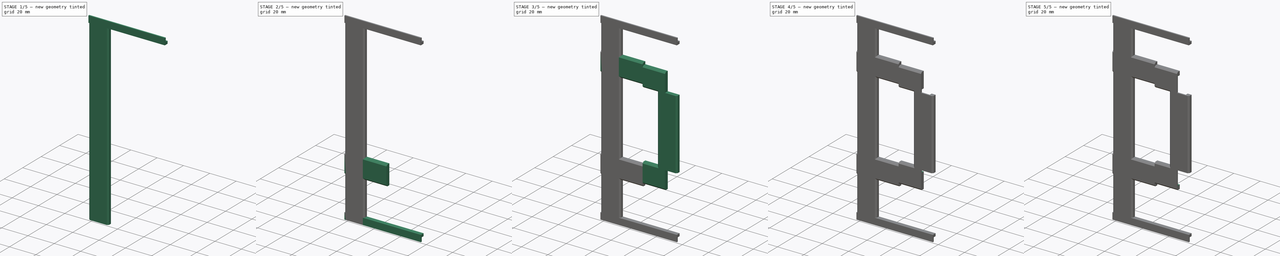
[diagram: build sequence overview — one tinted view per stage of 5, left to right]
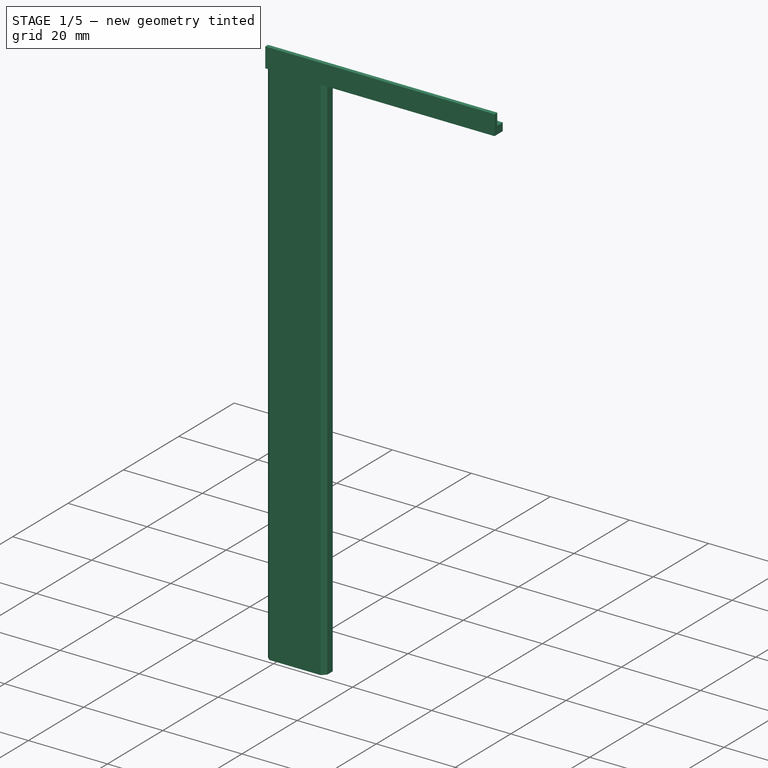
[diagram: stage 1 of 5 — iso view after this stage's code; geometry added in this stage tinted green]
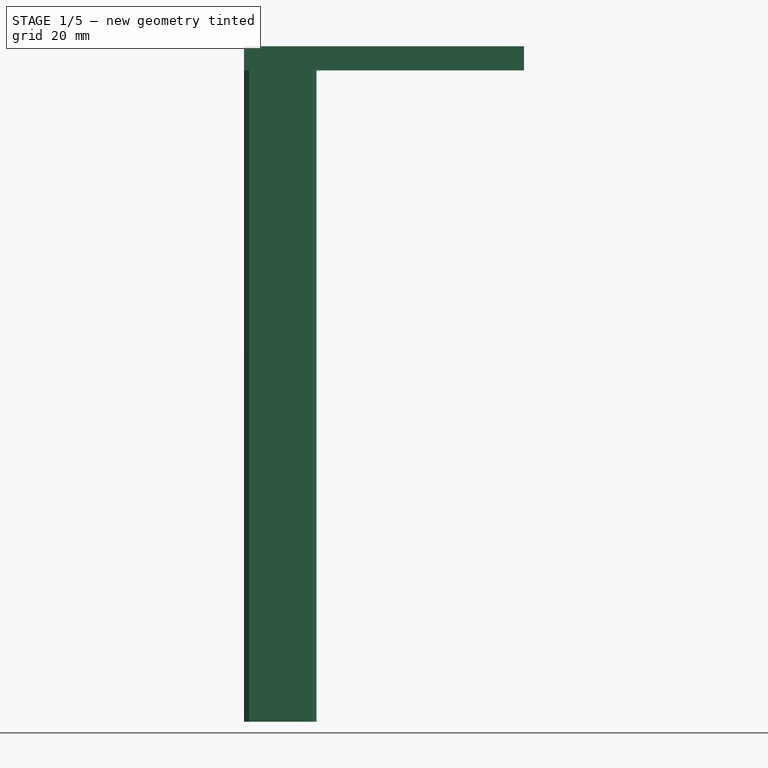
[diagram: stage 1 of 5 — front view after this stage's code; geometry added in this stage tinted green]
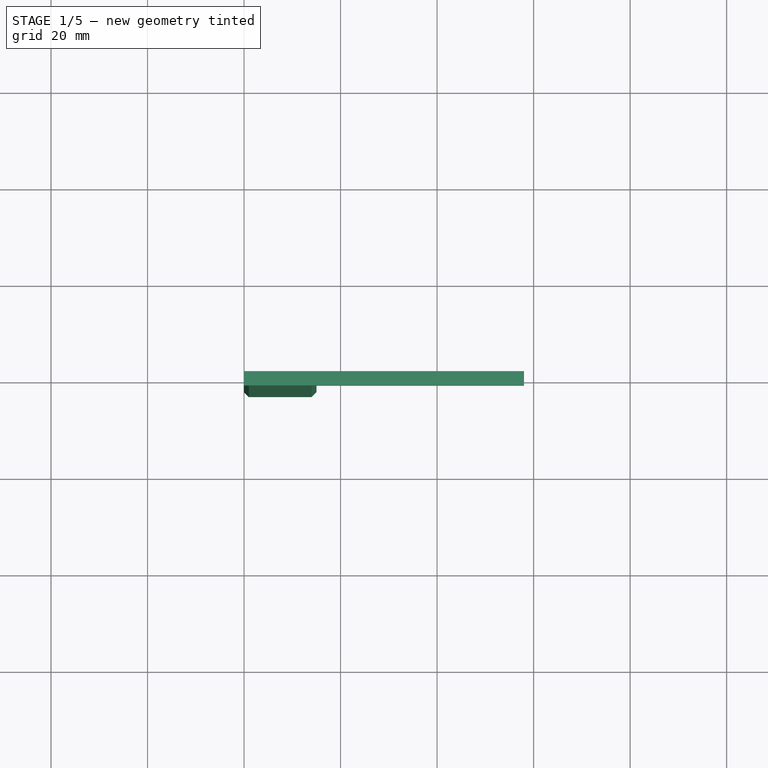
[diagram: stage 1 of 5 — top view after this stage's code; geometry added in this stage tinted green]
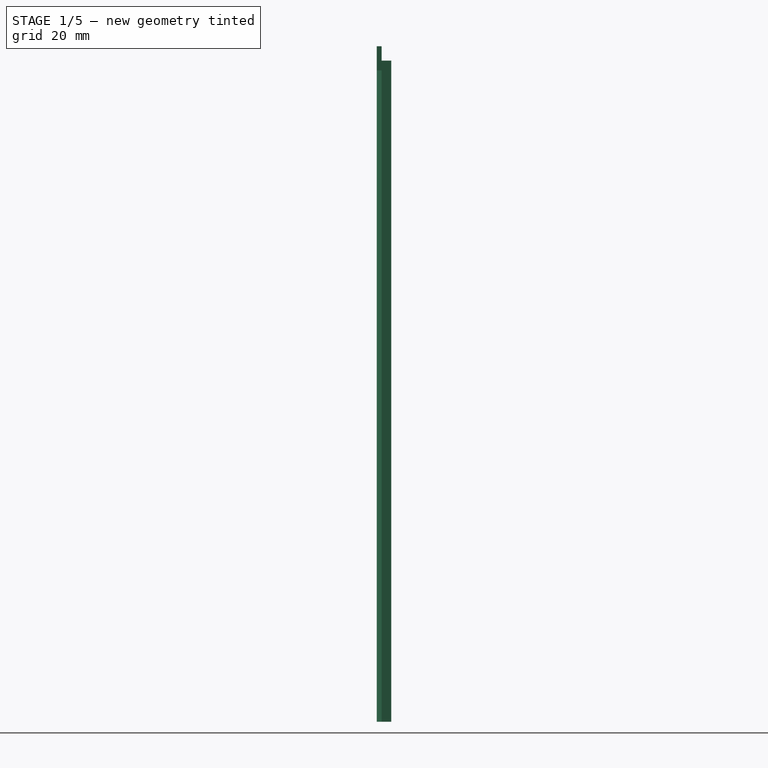
[diagram: stage 1 of 5 — right view after this stage's code; geometry added in this stage tinted green]
FCSTD DOCUMENT  (FreeCAD 0.20R29603 (Git))
Label: neopixelbracket_D
License: All rights reserved
LicenseURL: http://en.wikipedia.org/wiki/All_rights_reserved
objects: Sketcher::SketchObject×16, PartDesign::Pad×8, PartDesign::Pocket×8, PartDesign::Body×1
note: 49 computed .brp shape members not serialized (recipe doc carries the construction recipe); baked Part::Feature solids carry a one-line shape summary decoded from their .brp

FEATURE [Sketcher::SketchObject] Sketch
  FullyConstrained = true
  MapMode = 5
  Support = -> [XY_Plane]
  sketch-geometry (6):
    g0: LineSegment StartX=1.8e-15 StartY=0 StartZ=0 EndX=15 EndY=0 EndZ=0
    g1: LineSegment StartX=15 StartY=0 StartZ=0 EndX=15 EndY=-2 EndZ=0
    g2: LineSegment StartX=15 StartY=-2 StartZ=0 EndX=14 EndY=-3 EndZ=0
    g3: LineSegment StartX=14 StartY=-3 StartZ=0 EndX=1 EndY=-3 EndZ=0
    g4: LineSegment StartX=1 StartY=-3 StartZ=0 EndX=1.8e-15 EndY=-2 EndZ=0
    g5: LineSegment StartX=1.8e-15 StartY=-2 StartZ=0 EndX=1.8e-15 EndY=0 EndZ=0
  constraints (17):
    c: Horizontal(g0)
    c: Coincident(g0,g1)
    c: Vertical(g1)
    c: Coincident(g1,g2)
    c: Coincident(g2,g3)
    c: Horizontal(g3)
    c: Coincident(g3,g4)
    c: Coincident(g4,g5)
    c: Coincident(g5,g0)
    c: Vertical(g5)
    c: DistanceX(g4,g4) = 1
    c: DistanceY(g4,g4) = 1
    c: DistanceY(g5,g5) = 2
    c: DistanceX(g0,g0) = 15
    c: DistanceY(g1,g1) = 2
    c: DistanceX(g2,g2) = 1
    c: Coincident(g0,g-1)
FEATURE [PartDesign::Pad] Pad
  Direction = (0,0,1)
  Length = 140
  Length2 = 10
  Profile = -> Sketch
  ReferenceAxis = -> Sketch [N_Axis]
  Type = 0
FEATURE [Sketcher::SketchObject] Sketch001
  AttachmentOffset = pos=(0,0,-15) rot=(0,0,1;0rad)
  ExternalGeometry = -> [Pad]
  FullyConstrained = true
  MapMode = 5
  Placement = pos=(0,0,0) rot=(0.57735,0.57735,0.57735;2.0944rad)
  Support = -> [Pad]
  sketch-geometry (4):
    g0: LineSegment StartX=0 StartY=140 StartZ=0 EndX=-3 EndY=140 EndZ=0
    g1: LineSegment StartX=-3 StartY=140 StartZ=0 EndX=-3 EndY=135 EndZ=0
    g2: LineSegment StartX=-3 StartY=135 StartZ=0 EndX=0 EndY=135 EndZ=0
    g3: LineSegment StartX=0 StartY=135 StartZ=0 EndX=0 EndY=140 EndZ=0
  constraints (11):
    c: Coincident(g0,g1)
    c: Coincident(g1,g2)
    c: Coincident(g2,g3)
    c: Coincident(g3,g0)
    c: Horizontal(g0)
    c: Horizontal(g2)
    c: Vertical(g1)
    c: Vertical(g3)
    c: DistanceX(g0,g0) = 3
    c: DistanceY(g3,g3) = 5
    c: Coincident(g0,g-3)
FEATURE [PartDesign::Pad] Pad001
  BaseFeature = -> Pad
  Direction = (1,0,0)
  Length = 58
  Length2 = 10
  Profile = -> Sketch001
  ReferenceAxis = -> Sketch001 [N_Axis]
  Type = 0
FEATURE [Sketcher::SketchObject] Sketch002
  ExternalGeometry = -> [Pad001]
  FullyConstrained = true
  MapMode = 5
  Placement = pos=(58,0,0) rot=(0.57735,0.57735,0.57735;2.0944rad)
  Support = -> [Pad001]
  sketch-geometry (4):
    g0: LineSegment StartX=0 StartY=140 StartZ=0 EndX=-2 EndY=140 EndZ=0
    g1: LineSegment StartX=-2 StartY=140 StartZ=0 EndX=-2 EndY=137 EndZ=0
    g2: LineSegment StartX=-2 StartY=137 StartZ=0 EndX=0 EndY=137 EndZ=0
    g3: LineSegment StartX=0 StartY=137 StartZ=0 EndX=0 EndY=140 EndZ=0
  constraints (11):
    c: Coincident(g0,g1)
    c: Coincident(g1,g2)
    c: Coincident(g2,g3)
    c: Coincident(g3,g0)
    c: Horizontal(g0)
    c: Horizontal(g2)
    c: Vertical(g1)
    c: Vertical(g3)
    c: DistanceX(g0,g0) = 2
    c: DistanceY(g3,g3) = 3
    c: Coincident(g-3,g0)
FEATURE [PartDesign::Pocket] Pocket
  BaseFeature = -> Pad001
  Direction = (-1,0,0)
  Length = 58
  Length2 = 5
  Profile = -> Sketch002
  ReferenceAxis = -> Sketch002 [N_Axis]
  Type = 0
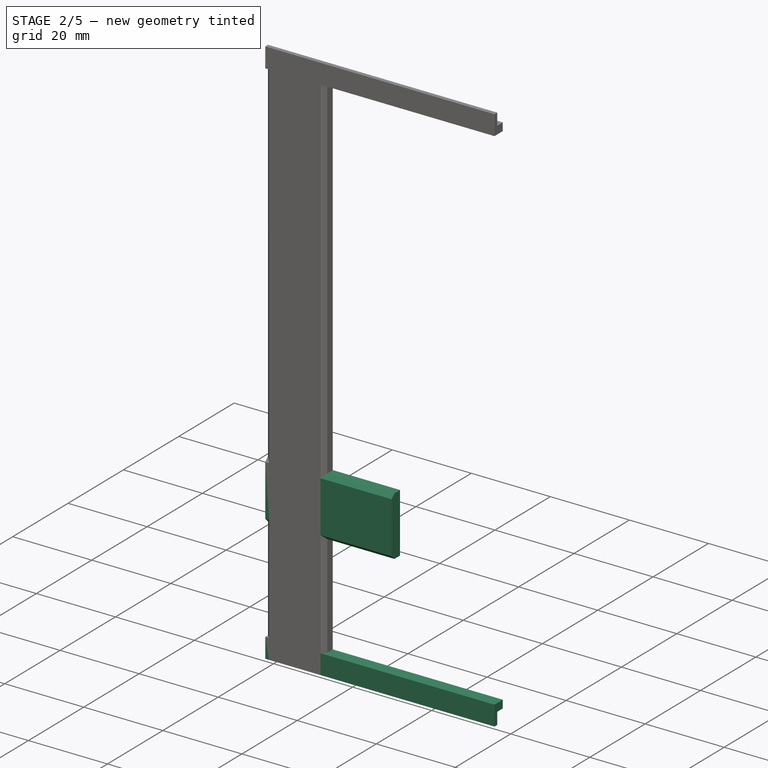
[diagram: stage 2 of 5 — iso view after this stage's code; geometry added in this stage tinted green]
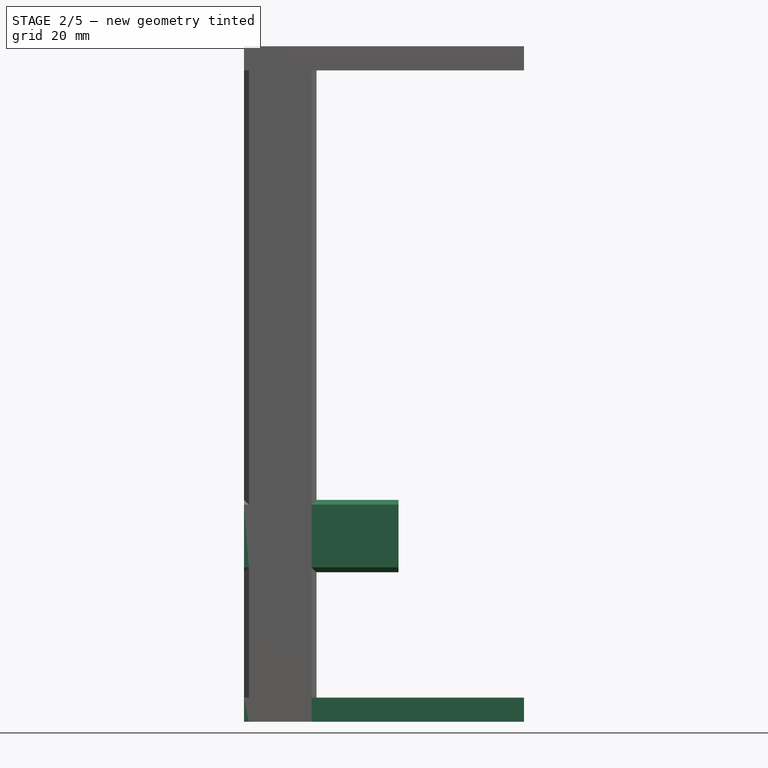
[diagram: stage 2 of 5 — front view after this stage's code; geometry added in this stage tinted green]
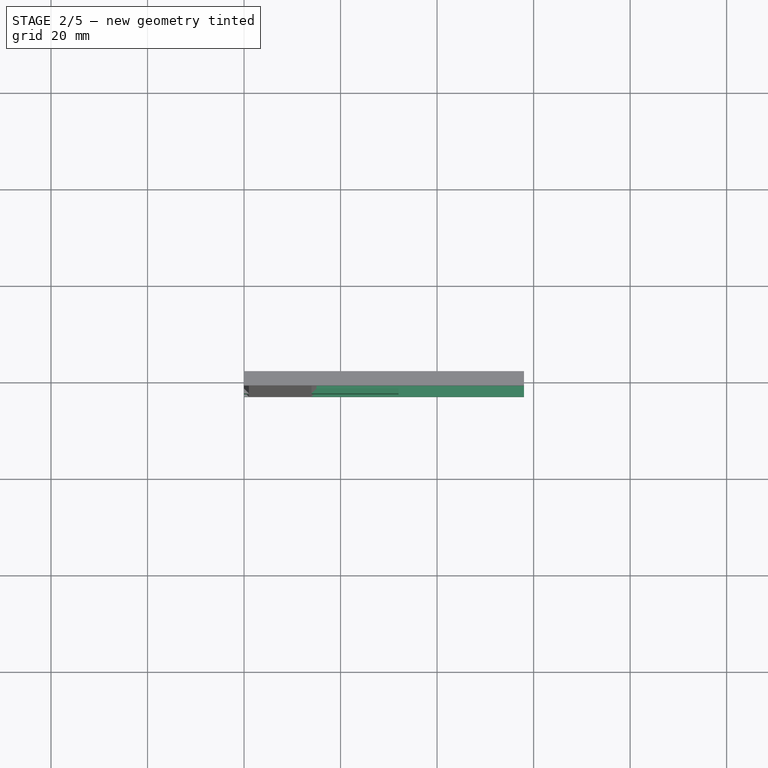
[diagram: stage 2 of 5 — top view after this stage's code; geometry added in this stage tinted green]
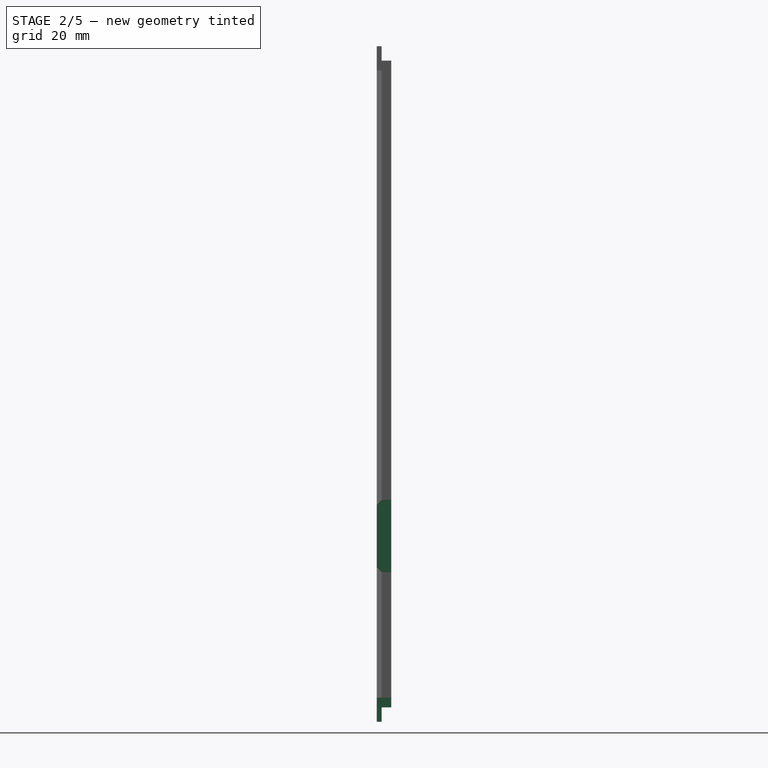
[diagram: stage 2 of 5 — right view after this stage's code; geometry added in this stage tinted green]
FEATURE [Sketcher::SketchObject] Sketch003
  AttachmentOffset = pos=(0,0,-15) rot=(0,0,1;0rad)
  FullyConstrained = true
  MapMode = 5
  Placement = pos=(0,0,0) rot=(0.57735,0.57735,0.57735;2.0944rad)
  Support = -> [Pocket]
  sketch-geometry (4):
    g0: LineSegment StartX=-3 StartY=5 StartZ=0 EndX=0 EndY=5 EndZ=0
    g1: LineSegment StartX=0 StartY=5 StartZ=0 EndX=0 EndY=0 EndZ=0
    g2: LineSegment StartX=0 StartY=0 StartZ=0 EndX=-3 EndY=0 EndZ=0
    g3: LineSegment StartX=-3 StartY=0 StartZ=0 EndX=-3 EndY=5 EndZ=0
  constraints (11):
    c: Coincident(g0,g1)
    c: Coincident(g1,g2)
    c: Coincident(g2,g3)
    c: Coincident(g3,g0)
    c: Horizontal(g0)
    c: Horizontal(g2)
    c: Vertical(g1)
    c: Vertical(g3)
    c: DistanceY(g1,g1) = 5
    c: DistanceX(g2,g2) = 3
    c: Coincident(g-1,g1)
FEATURE [PartDesign::Pad] Pad002
  BaseFeature = -> Pocket
  Direction = (1,0,0)
  Length = 58
  Length2 = 10
  Profile = -> Sketch003
  ReferenceAxis = -> Sketch003 [N_Axis]
  Type = 0
FEATURE [Sketcher::SketchObject] Sketch004
  FullyConstrained = true
  MapMode = 5
  Placement = pos=(58,0,0) rot=(0.57735,0.57735,0.57735;2.0944rad)
  Support = -> [Pad002]
  sketch-geometry (4):
    g0: LineSegment StartX=-2 StartY=3 StartZ=0 EndX=0 EndY=3 EndZ=0
    g1: LineSegment StartX=0 StartY=3 StartZ=0 EndX=0 EndY=0 EndZ=0
    g2: LineSegment StartX=0 StartY=0 StartZ=0 EndX=-2 EndY=0 EndZ=0
    g3: LineSegment StartX=-2 StartY=0 StartZ=0 EndX=-2 EndY=3 EndZ=0
  constraints (11):
    c: Coincident(g0,g1)
    c: Coincident(g1,g2)
    c: Coincident(g2,g3)
    c: Coincident(g3,g0)
    c: Horizontal(g0)
    c: Horizontal(g2)
    c: Vertical(g1)
    c: Vertical(g3)
    c: DistanceY(g1,g1) = 3
    c: DistanceX(g2,g2) = 2
    c: Coincident(g1,g-1)
FEATURE [PartDesign::Pocket] Pocket001
  BaseFeature = -> Pad002
  Direction = (-1,0,0)
  Length = 58
  Length2 = 5
  Profile = -> Sketch004
  ReferenceAxis = -> Sketch004 [N_Axis]
  Type = 0
FEATURE [Sketcher::SketchObject] Sketch005
  AttachmentOffset = pos=(0,0,-15) rot=(0,0,1;0rad)
  FullyConstrained = true
  MapMode = 5
  Placement = pos=(0,0,0) rot=(0.57735,0.57735,0.57735;2.0944rad)
  Support = -> [Pocket001]
  sketch-geometry (6):
    g0: LineSegment StartX=0 StartY=31 StartZ=0 EndX=-2 EndY=31 EndZ=0
    g1: LineSegment StartX=-2 StartY=31 StartZ=0 EndX=-3 EndY=32 EndZ=0
    g2: LineSegment StartX=-3 StartY=32 StartZ=0 EndX=-3 EndY=45 EndZ=0
    g3: LineSegment StartX=-3 StartY=45 StartZ=0 EndX=-2 EndY=46 EndZ=0
    g4: LineSegment StartX=-2 StartY=46 StartZ=0 EndX=0 EndY=46 EndZ=0
    g5: LineSegment StartX=0 StartY=46 StartZ=0 EndX=0 EndY=31 EndZ=0
  constraints (18):
    c: Horizontal(g0)
    c: Coincident(g0,g1)
    c: Coincident(g1,g2)
    c: Vertical(g2)
    c: Coincident(g2,g3)
    c: Coincident(g3,g4)
    c: Horizontal(g4)
    c: Coincident(g4,g5)
    c: Coincident(g5,g0)
    c: Vertical(g5)
    c: DistanceY(g5,g5) = 15
    c: DistanceY(g2,g3) = 1
    c: DistanceX(g2,g3) = 1
    c: DistanceX(g4,g4) = 2
    c: DistanceX(g0,g0) = 2
    c: DistanceY(g0,g1) = 1
    c: DistanceY(g-1,g0) = 31
    c: DistanceX(g-1,g0) = 0
FEATURE [PartDesign::Pad] Pad003
  BaseFeature = -> Pocket001
  Direction = (1,0,0)
  Length = 32
  Length2 = 10
  Profile = -> Sketch005
  ReferenceAxis = -> Sketch005 [N_Axis]
  Type = 0
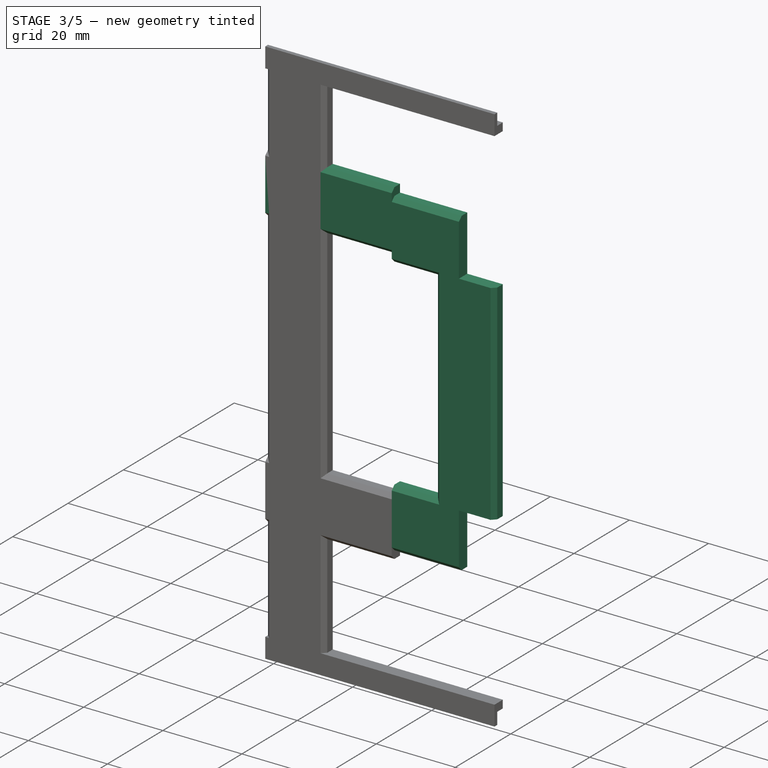
[diagram: stage 3 of 5 — iso view after this stage's code; geometry added in this stage tinted green]
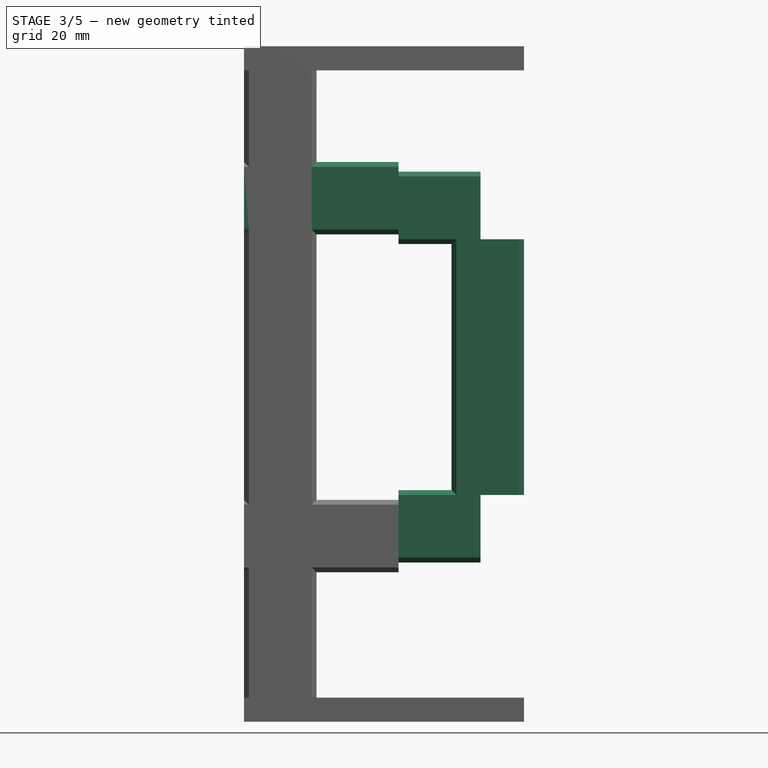
[diagram: stage 3 of 5 — front view after this stage's code; geometry added in this stage tinted green]
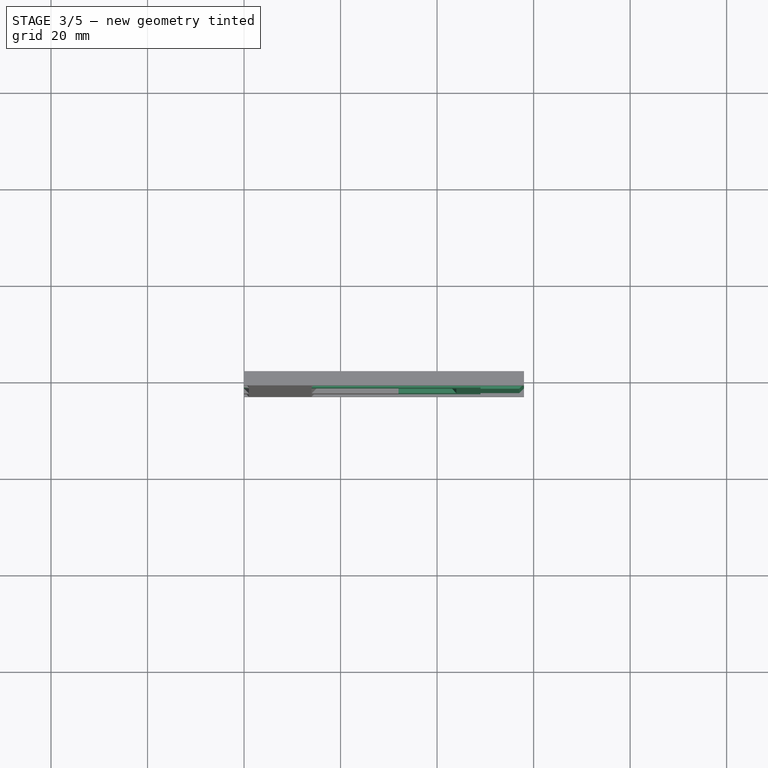
[diagram: stage 3 of 5 — top view after this stage's code; geometry added in this stage tinted green]
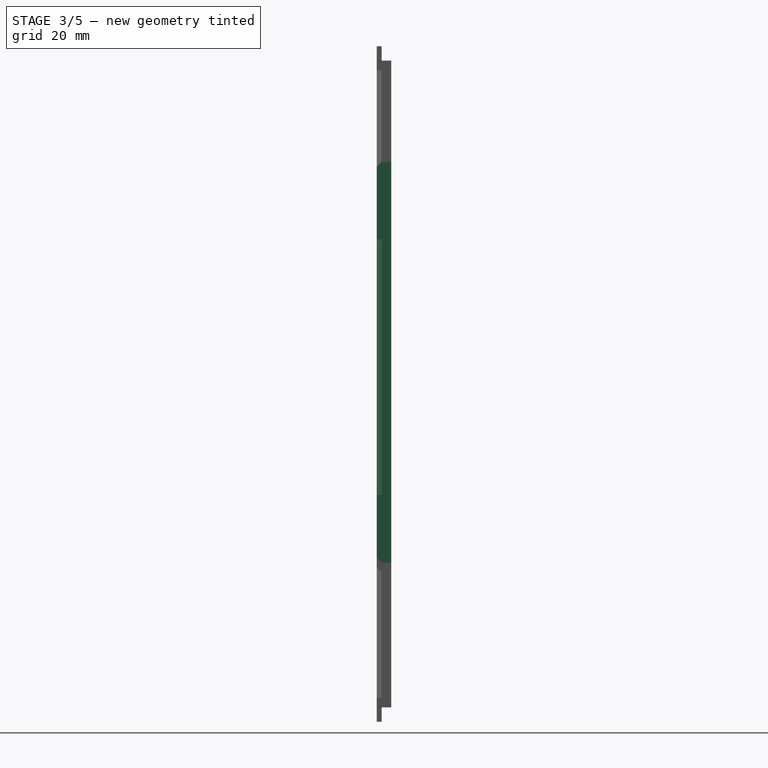
[diagram: stage 3 of 5 — right view after this stage's code; geometry added in this stage tinted green]
FEATURE [Sketcher::SketchObject] Sketch006
  AttachmentOffset = pos=(0,0,-15) rot=(0,0,1;0rad)
  ExternalGeometry = -> [Pad003]
  FullyConstrained = true
  MapMode = 5
  Placement = pos=(0,0,0) rot=(0.57735,0.57735,0.57735;2.0944rad)
  Support = -> [Pad003]
  sketch-geometry (6):
    g0: LineSegment StartX=0 StartY=116 StartZ=0 EndX=0 EndY=101 EndZ=0
    g1: LineSegment StartX=0 StartY=101 StartZ=0 EndX=-2 EndY=101 EndZ=0
    g2: LineSegment StartX=-2 StartY=101 StartZ=0 EndX=-3 EndY=102 EndZ=0
    g3: LineSegment StartX=-3 StartY=102 StartZ=0 EndX=-3 EndY=115 EndZ=0
    g4: LineSegment StartX=-3 StartY=115 StartZ=0 EndX=-2 EndY=116 EndZ=0
    g5: LineSegment StartX=-2 StartY=116 StartZ=0 EndX=0 EndY=116 EndZ=0
  constraints (18):
    c: Vertical(g0)
    c: Coincident(g0,g1)
    c: Horizontal(g1)
    c: Coincident(g1,g2)
    c: Coincident(g2,g3)
    c: Vertical(g3)
    c: Coincident(g3,g4)
    c: Coincident(g4,g5)
    c: Coincident(g5,g0)
    c: Horizontal(g5)
    c: DistanceY(g0,g0) = 15
    c: DistanceX(g5,g5) = 2
    c: DistanceY(g3,g4) = 1
    c: DistanceX(g3,g4) = 1
    c: DistanceY(g1,g2) = 1
    c: DistanceX(g1,g1) = 2
    c: DistanceY(g-4,g0) = 70
    c: DistanceX(g-4,g0) = 0
FEATURE [PartDesign::Pad] Pad004
  BaseFeature = -> Pad003
  Direction = (1,0,0)
  Length = 32
  Length2 = 10
  Profile = -> Sketch006
  ReferenceAxis = -> Sketch006 [N_Axis]
  Type = 0
FEATURE [Sketcher::SketchObject] Sketch007
  ExternalGeometry = -> [Pad004]
  FullyConstrained = true
  MapMode = 5
  Placement = pos=(32,0,0) rot=(0.57735,0.57735,0.57735;2.0944rad)
  Support = -> [Pad004]
  sketch-geometry (6):
    g0: LineSegment StartX=0 StartY=48 StartZ=0 EndX=0 EndY=33 EndZ=0
    g1: LineSegment StartX=0 StartY=33 StartZ=0 EndX=-2 EndY=33 EndZ=0
    g2: LineSegment StartX=-2 StartY=33 StartZ=0 EndX=-3 EndY=34 EndZ=0
    g3: LineSegment StartX=-3 StartY=34 StartZ=0 EndX=-3 EndY=47 EndZ=0
    g4: LineSegment StartX=-3 StartY=47 StartZ=0 EndX=-2 EndY=48 EndZ=0
    g5: LineSegment StartX=-2 StartY=48 StartZ=0 EndX=0 EndY=48 EndZ=0
  constraints (18):
    c: Vertical(g0)
    c: Coincident(g0,g1)
    c: Horizontal(g1)
    c: Coincident(g1,g2)
    c: Coincident(g2,g3)
    c: Vertical(g3)
    c: Coincident(g3,g4)
    c: Coincident(g4,g5)
    c: Coincident(g5,g0)
    c: Horizontal(g5)
    c: DistanceY(g0,g0) = 15
    c: DistanceY(g1,g2) = 1
    c: DistanceX(g2,g1) = 1
    c: DistanceX(g1,g0) = 2
    c: DistanceX(g4,g0) = 2
    c: DistanceY(g3,g4) = 1
    c: DistanceY(g-3,g0) = 2
    c: DistanceX(g-3,g0) = 0
FEATURE [PartDesign::Pad] Pad005
  BaseFeature = -> Pad004
  Direction = (1,0,0)
  Length = 17
  Length2 = 10
  Profile = -> Sketch007
  ReferenceAxis = -> Sketch007 [N_Axis]
  Type = 0
FEATURE [Sketcher::SketchObject] Sketch008
  ExternalGeometry = -> [Pad005]
  FullyConstrained = true
  MapMode = 5
  Placement = pos=(32,0,0) rot=(0.57735,0.57735,0.57735;2.0944rad)
  Support = -> [Pad005]
  sketch-geometry (6):
    g0: LineSegment StartX=-2 StartY=114 StartZ=0 EndX=0 EndY=114 EndZ=0
    g1: LineSegment StartX=0 StartY=114 StartZ=0 EndX=0 EndY=99 EndZ=0
    g2: LineSegment StartX=0 StartY=99 StartZ=0 EndX=-2 EndY=99 EndZ=0
    g3: LineSegment StartX=-2 StartY=99 StartZ=0 EndX=-3 EndY=100 EndZ=0
    g4: LineSegment StartX=-3 StartY=100 StartZ=0 EndX=-3 EndY=113 EndZ=0
    g5: LineSegment StartX=-3 StartY=113 StartZ=0 EndX=-2 EndY=114 EndZ=0
  constraints (18):
    c: Horizontal(g0)
    c: Coincident(g0,g1)
    c: Vertical(g1)
    c: Coincident(g1,g2)
    c: Horizontal(g2)
    c: Coincident(g2,g3)
    c: Coincident(g3,g4)
    c: Vertical(g4)
    c: Coincident(g4,g5)
    c: Coincident(g5,g0)
    c: DistanceY(g1,g1) = 15
    c: DistanceX(g0,g0) = 2
    c: DistanceX(g4,g0) = 1
    c: DistanceY(g4,g0) = 1
    c: DistanceY(g2,g3) = 1
    c: DistanceX(g2,g1) = 2
    c: DistanceY(g0,g-3) = 2
    c: DistanceX(g-3,g0) = 0
FEATURE [PartDesign::Pad] Pad006
  BaseFeature = -> Pad005
  Direction = (1,0,0)
  Length = 17
  Length2 = 10
  Profile = -> Sketch008
  ReferenceAxis = -> Sketch008 [N_Axis]
  Type = 0
FEATURE [Sketcher::SketchObject] Sketch009
  AttachmentOffset = pos=(0,0,-1) rot=(0,0,1;0rad)
  FullyConstrained = true
  MapMode = 5
  Placement = pos=(0,0,47) rot=(0,0,1;0rad)
  Support = -> [Pad006]
  sketch-geometry (6):
    g0: LineSegment StartX=43 StartY=0 StartZ=0 EndX=58 EndY=0 EndZ=0
    g1: LineSegment StartX=58 StartY=0 StartZ=0 EndX=58 EndY=-2 EndZ=0
    g2: LineSegment StartX=58 StartY=-2 StartZ=0 EndX=57 EndY=-3 EndZ=0
    g3: LineSegment StartX=57 StartY=-3 StartZ=0 EndX=44 EndY=-3 EndZ=0
    g4: LineSegment StartX=44 StartY=-3 StartZ=0 EndX=43 EndY=-2 EndZ=0
    g5: LineSegment StartX=43 StartY=-2 StartZ=0 EndX=43 EndY=0 EndZ=0
  constraints (18):
    c: Horizontal(g0)
    c: Coincident(g0,g1)
    c: Vertical(g1)
    c: Coincident(g1,g2)
    c: Coincident(g2,g3)
    c: Horizontal(g3)
    c: Coincident(g3,g4)
    c: Coincident(g4,g5)
    c: Coincident(g5,g0)
    c: Vertical(g5)
    c: DistanceY(g3,g4) = 1
    c: DistanceX(g4,g3) = 1
    c: DistanceX(g2,g1) = 1
    c: DistanceX(g0,g0) = 15
    c: DistanceY(g1,g1) = 2
    c: DistanceY(g5,g5) = 2
    c: DistanceX(g-1,g0) = 58
    c: DistanceY(g-1,g0) = 0
FEATURE [PartDesign::Pad] Pad007
  BaseFeature = -> Pad006
  Direction = (0,0,1)
  Length = 53
  Length2 = 10
  Profile = -> Sketch009
  ReferenceAxis = -> Sketch009 [N_Axis]
  Type = 0
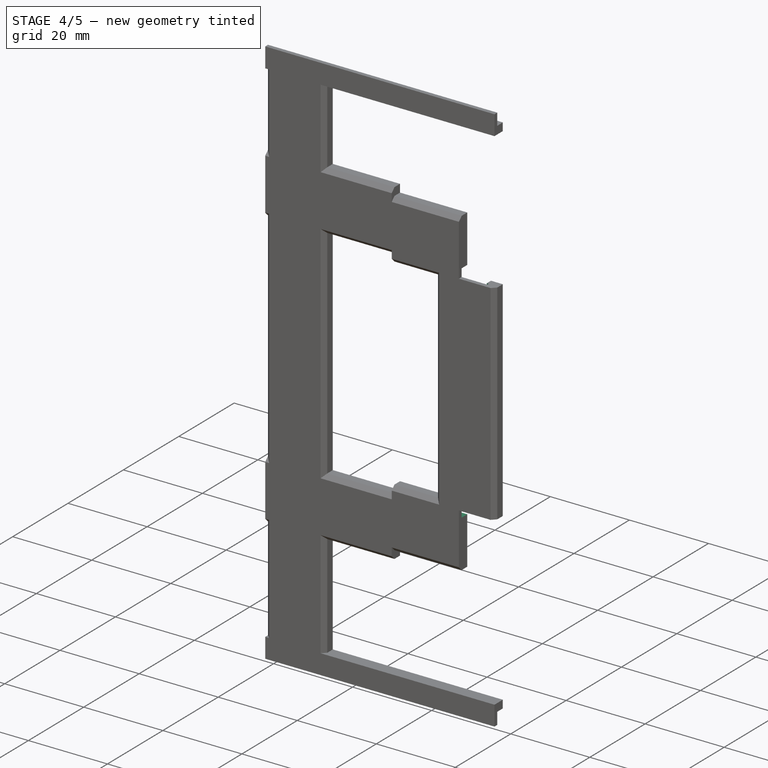
[diagram: stage 4 of 5 — iso view after this stage's code; geometry added in this stage tinted green]
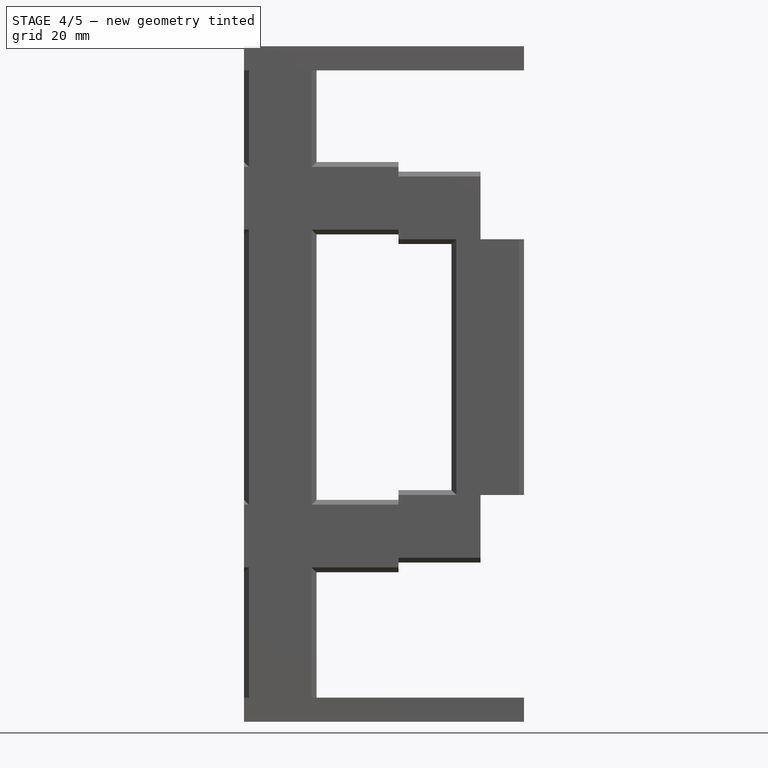
[diagram: stage 4 of 5 — front view after this stage's code; geometry added in this stage tinted green]
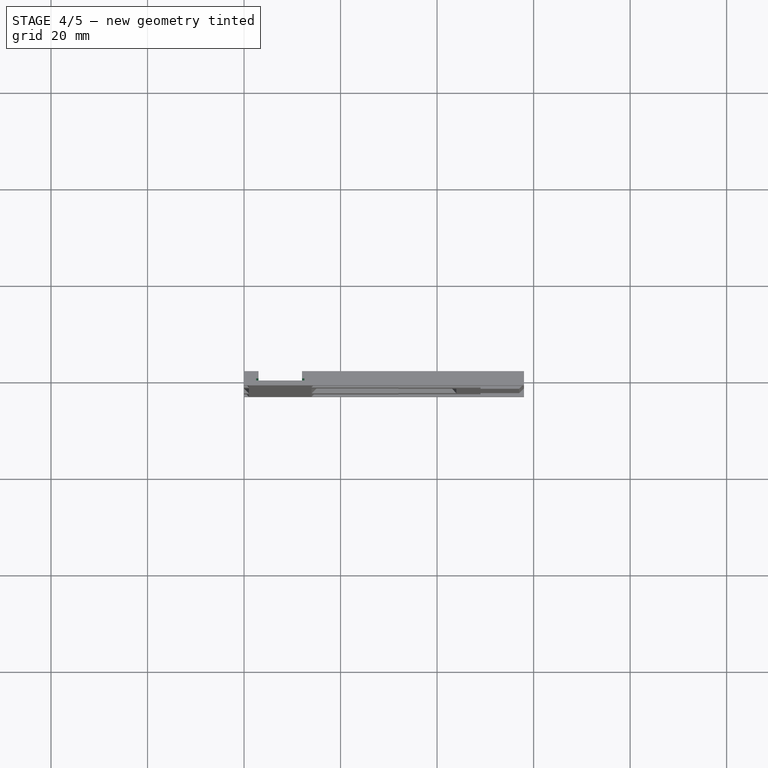
[diagram: stage 4 of 5 — top view after this stage's code; geometry added in this stage tinted green]
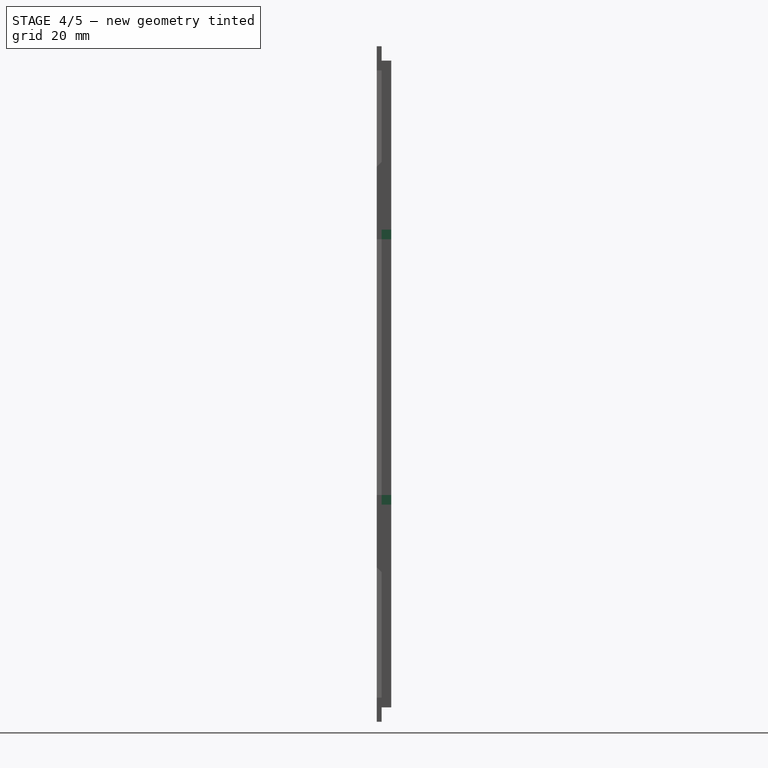
[diagram: stage 4 of 5 — right view after this stage's code; geometry added in this stage tinted green]
FEATURE [Sketcher::SketchObject] Sketch010
  FullyConstrained = true
  MapMode = 5
  Placement = pos=(0,0,137) rot=(0,0,1;0rad)
  Support = -> [Pad007]
  sketch-geometry (8):
    g0: LineSegment StartX=2.5 StartY=-2 StartZ=0 EndX=12.5 EndY=-2 EndZ=0
    g1: LineSegment StartX=12.5 StartY=-2 StartZ=0 EndX=12.5 EndY=-1.5 EndZ=0
    g2: LineSegment StartX=12.5 StartY=-1.5 StartZ=0 EndX=12 EndY=-1.5 EndZ=0
    g3: LineSegment StartX=12 StartY=-1.5 StartZ=0 EndX=12 EndY=0 EndZ=0
    g4: LineSegment StartX=12 StartY=0 StartZ=0 EndX=3 EndY=0 EndZ=0
    g5: LineSegment StartX=3 StartY=0 StartZ=0 EndX=3 EndY=-1.5 EndZ=0
    g6: LineSegment StartX=3 StartY=-1.5 StartZ=0 EndX=2.5 EndY=-1.5 EndZ=0
    g7: LineSegment StartX=2.5 StartY=-1.5 StartZ=0 EndX=2.5 EndY=-2 EndZ=0
  constraints (24):
    c: Horizontal(g0)
    c: Coincident(g0,g1)
    c: Vertical(g1)
    c: Coincident(g1,g2)
    c: Horizontal(g2)
    c: Coincident(g2,g3)
    c: Vertical(g3)
    c: Coincident(g3,g4)
    c: Horizontal(g4)
    c: Coincident(g4,g5)
    c: Vertical(g5)
    c: Coincident(g5,g6)
    c: Horizontal(g6)
    c: Coincident(g6,g7)
    c: Coincident(g7,g0)
    c: Vertical(g7)
    c: DistanceX(g0,g0) = 10
    c: DistanceX(g2,g2) = 0.5
    c: DistanceX(g6,g6) = 0.5
    c: DistanceY(g1,g1) = 0.5
    c: DistanceY(g7,g7) = 0.5
    c: DistanceY(g3,g3) = 1.5
    c: DistanceX(g-1,g4) = 3
    c: DistanceY(g-1,g4) = 0
FEATURE [PartDesign::Pocket] Pocket002
  BaseFeature = -> Pad007
  Direction = (0,0,-1)
  Length = 134
  Length2 = 5
  Profile = -> Sketch010
  ReferenceAxis = -> Sketch010 [N_Axis]
  Type = 0
FEATURE [Sketcher::SketchObject] Sketch011
  AttachmentOffset = pos=(0,0,2) rot=(0,0,1;0rad)
  ExternalGeometry = -> [Pocket002]
  FullyConstrained = true
  MapMode = 5
  Placement = pos=(0,0,102) rot=(0,0,1;0rad)
  Support = -> [Pocket002]
  sketch-geometry (8):
    g0: LineSegment StartX=55.5 StartY=-2 StartZ=0 EndX=45.5 EndY=-2 EndZ=0
    g1: LineSegment StartX=45.5 StartY=-2 StartZ=0 EndX=45.5 EndY=-1.5 EndZ=0
    g2: LineSegment StartX=45.5 StartY=-1.5 StartZ=0 EndX=46 EndY=-1.5 EndZ=0
    g3: LineSegment StartX=46 StartY=-1.5 StartZ=0 EndX=46 EndY=0 EndZ=0
    g4: LineSegment StartX=46 StartY=0 StartZ=0 EndX=55 EndY=0 EndZ=0
    g5: LineSegment StartX=55 StartY=0 StartZ=0 EndX=55 EndY=-1.5 EndZ=0
    g6: LineSegment StartX=55 StartY=-1.5 StartZ=0 EndX=55.5 EndY=-1.5 EndZ=0
    g7: LineSegment StartX=55.5 StartY=-1.5 StartZ=0 EndX=55.5 EndY=-2 EndZ=0
  constraints (24):
    c: Horizontal(g0)
    c: Coincident(g0,g1)
    c: Vertical(g1)
    c: Coincident(g1,g2)
    c: Horizontal(g2)
    c: Coincident(g2,g3)
    c: Vertical(g3)
    c: Coincident(g3,g4)
    c: Horizontal(g4)
    c: Coincident(g4,g5)
    c: Vertical(g5)
    c: Coincident(g5,g6)
    c: Horizontal(g6)
    c: Coincident(g6,g7)
    c: Coincident(g7,g0)
    c: Vertical(g7)
    c: DistanceX(g0,g0) = 10
    c: DistanceX(g2,g2) = 0.5
    c: DistanceX(g6,g6) = 0.5
    c: DistanceY(g1,g1) = 0.5
    c: DistanceY(g3,g3) = 1.5
    c: DistanceY(g7,g7) = 0.5
    c: DistanceY(g-3,g4) = 0
    c: DistanceX(g4,g-3) = 3
FEATURE [PartDesign::Pocket] Pocket003
  BaseFeature = -> Pocket002
  Direction = (0,0,-1)
  Length = 57
  Length2 = 5
  Profile = -> Sketch011
  ReferenceAxis = -> Sketch011 [N_Axis]
  Type = 0
FEATURE [Sketcher::SketchObject] Sketch012
  ExternalGeometry = -> [Pocket003]
  FullyConstrained = true
  MapMode = 5
  Placement = pos=(1.8e-15,0,0) rot=(0.57735,-0.57735,-0.57735;2.0944rad)
  Support = -> [Pocket003]
  sketch-geometry (8):
    g0: LineSegment StartX=2 StartY=113.5 StartZ=0 EndX=1.5 EndY=113.5 EndZ=0
    g1: LineSegment StartX=1.5 StartY=113.5 StartZ=0 EndX=1.5 EndY=113 EndZ=0
    g2: LineSegment StartX=1.5 StartY=113 StartZ=0 EndX=0 EndY=113 EndZ=0
    g3: LineSegment StartX=0 StartY=113 StartZ=0 EndX=0 EndY=104.04 EndZ=0
    g4: LineSegment StartX=0 StartY=104.04 StartZ=0 EndX=1.5 EndY=104.04 EndZ=0
    g5: LineSegment StartX=1.5 StartY=104.04 StartZ=0 EndX=1.5 EndY=103.5 EndZ=0
    g6: LineSegment StartX=1.5 StartY=103.5 StartZ=0 EndX=2 EndY=103.5 EndZ=0
    g7: LineSegment StartX=2 StartY=103.5 StartZ=0 EndX=2 EndY=113.5 EndZ=0
  constraints (24):
    c: Horizontal(g0)
    c: Coincident(g0,g1)
    c: Vertical(g1)
    c: Coincident(g1,g2)
    c: Horizontal(g2)
    c: Coincident(g2,g3)
    c: Vertical(g3)
    c: Coincident(g3,g4)
    c: Horizontal(g4)
    c: Coincident(g4,g5)
    c: Vertical(g5)
    c: Coincident(g5,g6)
    c: Horizontal(g6)
    c: Coincident(g6,g7)
    c: Coincident(g7,g0)
    c: Vertical(g7)
    c: DistanceY(g7,g7) = 10
    c: DistanceY(g5,g5) = 0.54
    c: DistanceY(g1,g1) = 0.5
    c: DistanceX(g0,g0) = 0.5
    c: DistanceX(g6,g6) = 0.5
    c: DistanceX(g2,g2) = 1.5
    c: DistanceY(g2,g-3) = 3
    c: DistanceX(g-3,g2) = 0
FEATURE [PartDesign::Pocket] Pocket004
  BaseFeature = -> Pocket003
  Direction = (1,0,0)
  Length = 32
  Length2 = 5
  Profile = -> Sketch012
  ReferenceAxis = -> Sketch012 [N_Axis]
  Type = 0
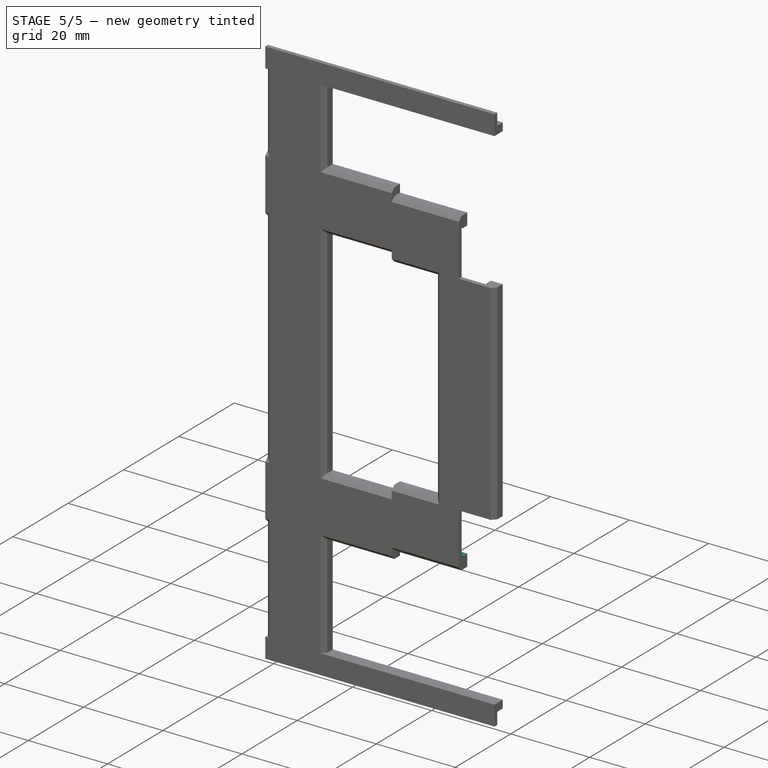
[diagram: stage 5 of 5 — iso view after this stage's code; geometry added in this stage tinted green]
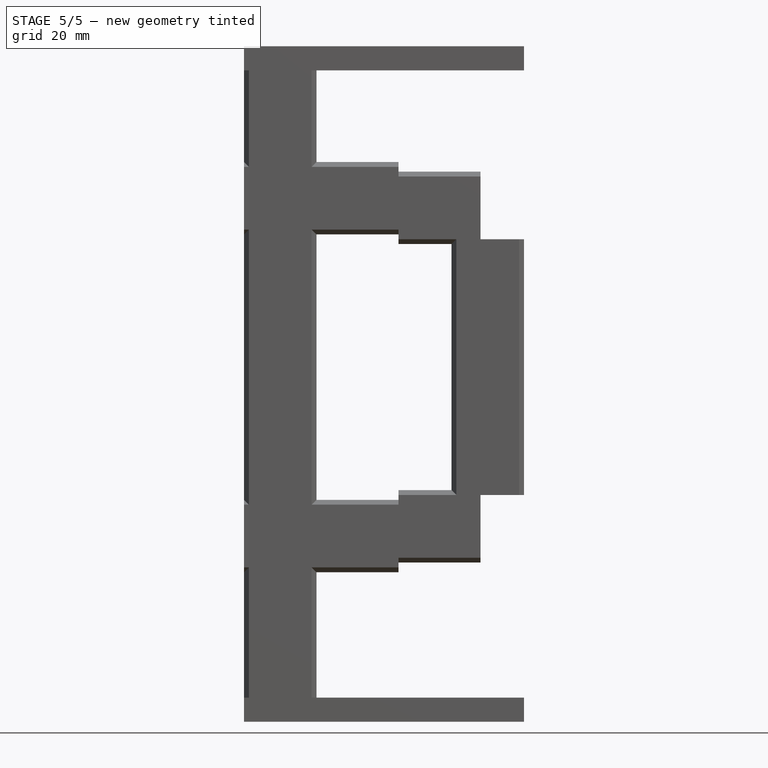
[diagram: stage 5 of 5 — front view after this stage's code; geometry added in this stage tinted green]
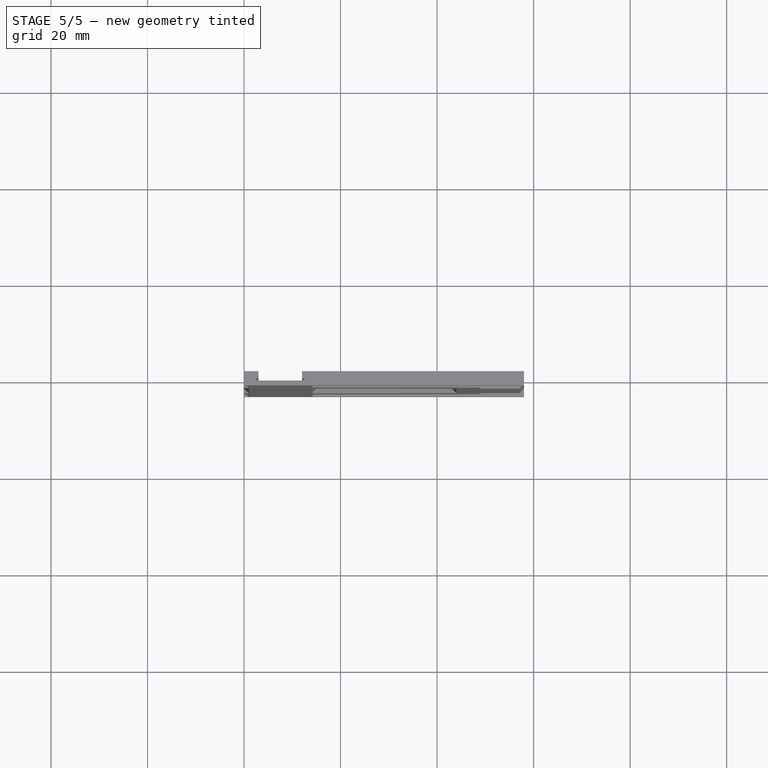
[diagram: stage 5 of 5 — top view after this stage's code; geometry added in this stage tinted green]
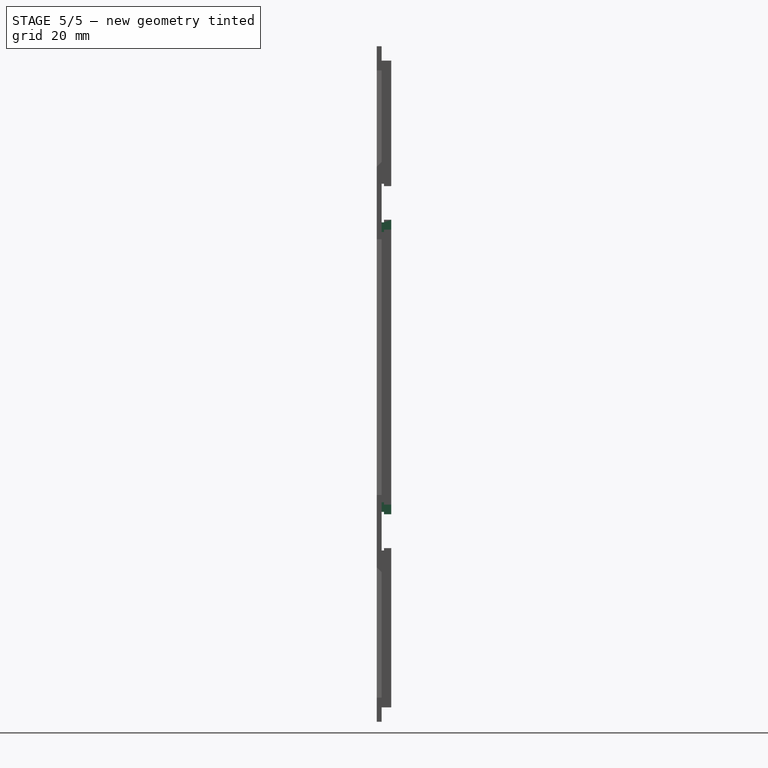
[diagram: stage 5 of 5 — right view after this stage's code; geometry added in this stage tinted green]
FEATURE [Sketcher::SketchObject] Sketch013
  ExternalGeometry = -> [Pocket004]
  FullyConstrained = true
  MapMode = 5
  Placement = pos=(32,0,0) rot=(0.57735,-0.57735,-0.57735;2.0944rad)
  Support = -> [Pocket004]
  sketch-geometry (8):
    g0: LineSegment StartX=0 StartY=111 StartZ=0 EndX=1.5 EndY=111 EndZ=0
    g1: LineSegment StartX=1.5 StartY=111 StartZ=0 EndX=1.5 EndY=111.5 EndZ=0
    g2: LineSegment StartX=1.5 StartY=111.5 StartZ=0 EndX=2 EndY=111.5 EndZ=0
    g3: LineSegment StartX=2 StartY=111.5 StartZ=0 EndX=2 EndY=101.5 EndZ=0
    g4: LineSegment StartX=2 StartY=101.5 StartZ=0 EndX=1.5 EndY=101.5 EndZ=0
    g5: LineSegment StartX=1.5 StartY=101.5 StartZ=0 EndX=1.5 EndY=102 EndZ=0
    g6: LineSegment StartX=1.5 StartY=102 StartZ=0 EndX=0 EndY=102 EndZ=0
    g7: LineSegment StartX=0 StartY=102 StartZ=0 EndX=0 EndY=111 EndZ=0
  constraints (24):
    c: Horizontal(g0)
    c: Coincident(g0,g1)
    c: Vertical(g1)
    c: Coincident(g1,g2)
    c: Horizontal(g2)
    c: Coincident(g2,g3)
    c: Vertical(g3)
    c: Coincident(g3,g4)
    c: Horizontal(g4)
    c: Coincident(g4,g5)
    c: Coincident(g5,g6)
    c: Horizontal(g6)
    c: Coincident(g6,g7)
    c: Coincident(g7,g0)
    c: Vertical(g7)
    c: DistanceX(g2,g2) = 0.5
    c: DistanceX(g0,g0) = 1.5
    c: DistanceX(g4,g4) = 0.5
    c: Vertical(g5)
    c: DistanceY(g3,g3) = 10
    c: DistanceY(g1,g1) = 0.5
    c: DistanceY(g5,g5) = 0.5
    c: DistanceY(g-3,g6) = 3
    c: DistanceX(g6,g-3) = 0
FEATURE [PartDesign::Pocket] Pocket005
  BaseFeature = -> Pocket004
  Direction = (1,0,0)
  Length = 17
  Length2 = 5
  Profile = -> Sketch013
  ReferenceAxis = -> Sketch013 [N_Axis]
  Type = 0
FEATURE [Sketcher::SketchObject] Sketch014
  ExternalGeometry = -> [Pocket005]
  FullyConstrained = true
  MapMode = 5
  Placement = pos=(32,0,0) rot=(0.57735,-0.57735,-0.57735;2.0944rad)
  Support = -> [Pocket005]
  sketch-geometry (8):
    g0: LineSegment StartX=0 StartY=45 StartZ=0 EndX=1.5 EndY=45 EndZ=0
    g1: LineSegment StartX=1.5 StartY=45 StartZ=0 EndX=1.5 EndY=45.5 EndZ=0
    g2: LineSegment StartX=1.5 StartY=45.5 StartZ=0 EndX=2 EndY=45.5 EndZ=0
    g3: LineSegment StartX=2 StartY=45.5 StartZ=0 EndX=2 EndY=35.5 EndZ=0
    g4: LineSegment StartX=2 StartY=35.5 StartZ=0 EndX=1.5 EndY=35.5 EndZ=0
    g5: LineSegment StartX=1.5 StartY=35.5 StartZ=0 EndX=1.5 EndY=36 EndZ=0
    g6: LineSegment StartX=1.5 StartY=36 StartZ=0 EndX=0 EndY=36 EndZ=0
    g7: LineSegment StartX=0 StartY=36 StartZ=0 EndX=0 EndY=45 EndZ=0
  constraints (24):
    c: Horizontal(g0)
    c: Coincident(g0,g1)
    c: Vertical(g1)
    c: Coincident(g1,g2)
    c: Horizontal(g2)
    c: Coincident(g2,g3)
    c: Vertical(g3)
    c: Coincident(g3,g4)
    c: Horizontal(g4)
    c: Coincident(g4,g5)
    c: Vertical(g5)
    c: Coincident(g5,g6)
    c: Horizontal(g6)
    c: Coincident(g6,g7)
    c: Coincident(g7,g0)
    c: Vertical(g7)
    c: DistanceX(g2,g2) = 0.5
    c: DistanceX(g0,g0) = 1.5
    c: DistanceX(g4,g4) = 0.5
    c: DistanceY(g1,g1) = 0.5
    c: DistanceY(g5,g5) = 0.5
    c: DistanceY(g3,g3) = 10
    c: DistanceY(g0,g-3) = 3
    c: DistanceX(g0,g-3) = 0
FEATURE [PartDesign::Pocket] Pocket006
  BaseFeature = -> Pocket005
  Direction = (1,0,0)
  Length = 17
  Length2 = 5
  Profile = -> Sketch014
  ReferenceAxis = -> Sketch014 [N_Axis]
  Type = 0
FEATURE [Sketcher::SketchObject] Sketch015
  ExternalGeometry = -> [Pocket006]
  FullyConstrained = true
  MapMode = 5
  Placement = pos=(1.8e-15,0,0) rot=(0.57735,-0.57735,-0.57735;2.0944rad)
  Support = -> [Pocket006]
  sketch-geometry (8):
    g0: LineSegment StartX=2 StartY=33.5 StartZ=0 EndX=1.5 EndY=33.5 EndZ=0
    g1: LineSegment StartX=1.5 StartY=33.5 StartZ=0 EndX=1.5 EndY=34 EndZ=0
    g2: LineSegment StartX=1.5 StartY=34 StartZ=0 EndX=0 EndY=34 EndZ=0
    g3: LineSegment StartX=0 StartY=34 StartZ=0 EndX=0 EndY=43 EndZ=0
    g4: LineSegment StartX=0 StartY=43 StartZ=0 EndX=1.5 EndY=43 EndZ=0
    g5: LineSegment StartX=1.5 StartY=43 StartZ=0 EndX=1.5 EndY=43.5 EndZ=0
    g6: LineSegment StartX=1.5 StartY=43.5 StartZ=0 EndX=2 EndY=43.5 EndZ=0
    g7: LineSegment StartX=2 StartY=43.5 StartZ=0 EndX=2 EndY=33.5 EndZ=0
  constraints (24):
    c: Horizontal(g0)
    c: Coincident(g0,g1)
    c: Vertical(g1)
    c: Coincident(g1,g2)
    c: Horizontal(g2)
    c: Coincident(g2,g3)
    c: Vertical(g3)
    c: Coincident(g3,g4)
    c: Horizontal(g4)
    c: Coincident(g4,g5)
    c: Vertical(g5)
    c: Coincident(g5,g6)
    c: Horizontal(g6)
    c: Coincident(g6,g7)
    c: Coincident(g7,g0)
    c: Vertical(g7)
    c: DistanceX(g6,g6) = 0.5
    c: DistanceX(g4,g4) = 1.5
    c: DistanceX(g0,g0) = 0.5
    c: DistanceY(g7,g7) = 10
    c: DistanceY(g5,g5) = 0.5
    c: DistanceY(g1,g1) = 0.5
    c: DistanceY(g-3,g2) = 3
    c: DistanceX(g-3,g2) = 0
FEATURE [PartDesign::Pocket] Pocket007
  BaseFeature = -> Pocket006
  Direction = (1,0,0)
  Length = 32
  Length2 = 5
  Profile = -> Sketch015
  ReferenceAxis = -> Sketch015 [N_Axis]
  Type = 0
FEATURE [PartDesign::Body] Body
  Group = -> [Sketch,Pad,Sketch001,Pad001,Sketch002,Pocket,Sketch003,Pad002,Sketch004,Pocket001,Sketch005,Pad003,Sketch006,Pad004,Sketch007,Pad005,Sketch008,Pad006,Sketch009,Pad007,Sketch010,Pocket002,Sketch011,Pocket003,Sketch012,Pocket004,Sketch013,Pocket005,Sketch014,Pocket006,Sketch015,Pocket007]
  Origin = -> Origin
  Tip = -> Pocket007
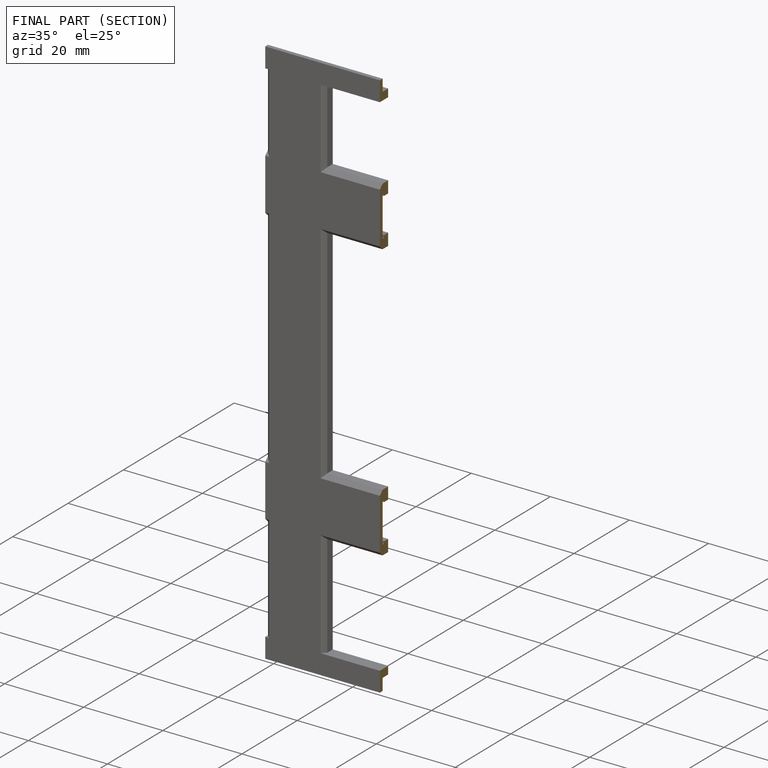
[diagram: finished part — half-section view (interior)]
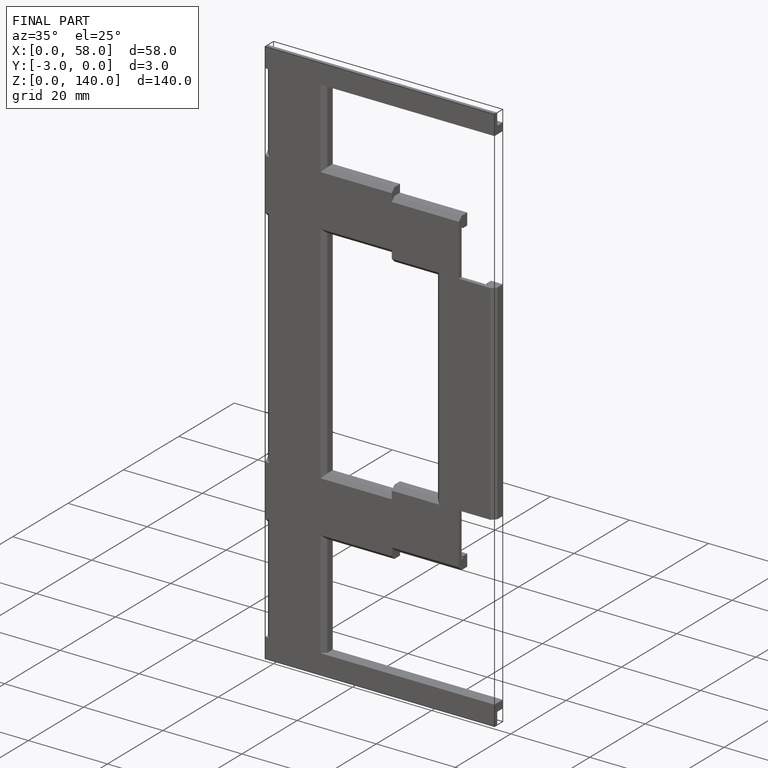
[diagram: finished part — iso view with bounding-box wireframe]
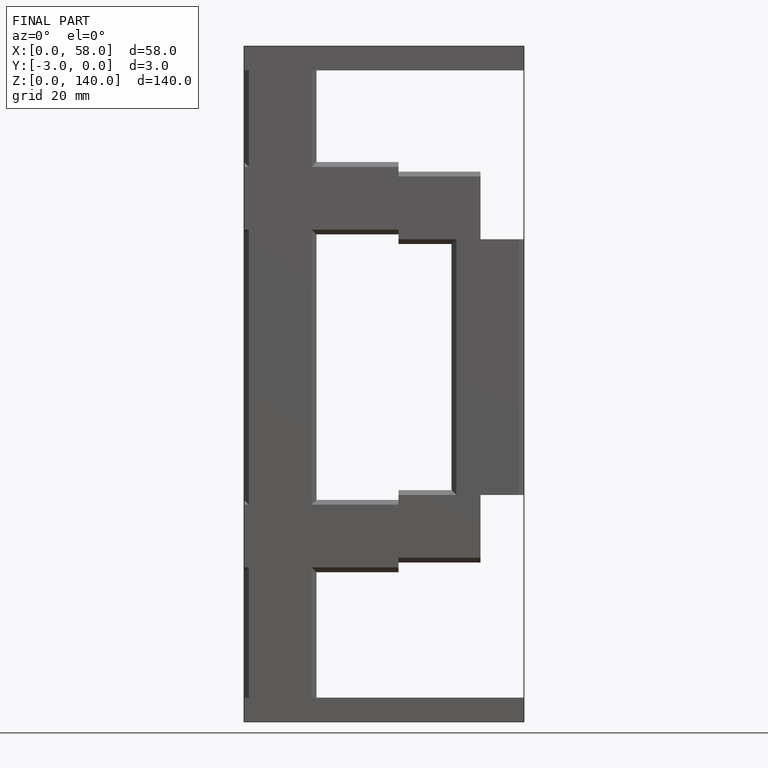
[diagram: finished part — front view with bounding-box wireframe]
